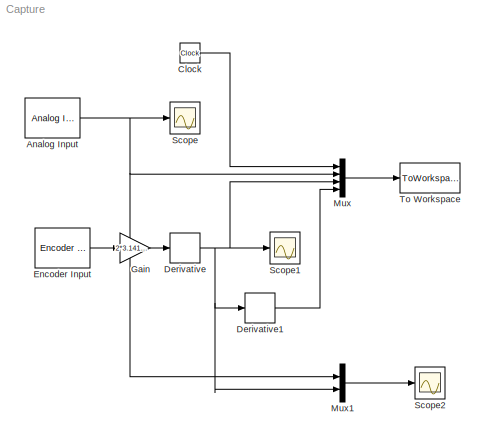
MODEL Capture
KIND model
BLOCK [Reference] Analog Input  REF=rtwinlib/Analog Input
  AttributesFormatString = Sensoray\\nModel 626 [auto]
  Channels = 1
  DataType = 1
  DrvAddress = 4294967295
  DrvName = Sensoray/Model_626
  DrvOptions = zeros(1,0)
  Ports = [0, 1]
  RangeMode = 1
  SampleTime = -1
  SourceBlock = rtwinlib/Analog Input
  SourceType = RTWin Analog Input
  VoltRange = 1
BLOCK [Clock] Clock
  Decimation = 10
BLOCK [Derivative] Derivative
BLOCK [Derivative] Derivative1
BLOCK [Reference] Encoder Input  REF=rtwinlib/Encoder Input
  AttributesFormatString = Sensoray\\nModel 626 [auto]
  Channels = [4]
  DataType = 1
  DrvAddress = 4294967295
  DrvName = Sensoray/Model_626
  DrvOptions = zeros(1,0)
  IndexPulse = 2
  InputFilter = Inf
  Ports = [0, 1]
  QuadMode = 3
  SampleTime = -1
  SourceBlock = rtwinlib/Encoder Input
  SourceType = RTWin Encoder Input
BLOCK [Gain] Gain
  Gain = 2*3.141592/(500*4*4.8)
  OutDataType = sfix(16)
  OutDataTypeMode = Inherit via internal rule
  OutScaling = 2^0
  ParameterDataType = sfix(16)
  ParameterDataTypeMode = Inherit via internal rule
  ParameterScaling = 2^0
  SaturateOnIntegerOverflow = off
BLOCK [Mux] Mux
  DisplayOption = bar
  Ports = [4, 1]
BLOCK [Mux] Mux1
  DisplayOption = bar
  Inputs = 2
  Ports = [2, 1]
BLOCK [Scope] Scope
  DataFormat = StructureWithTime
  Floating = off
  NumInputPorts = 1
  Ports = [1]
  SampleTime = 0
  TimeRange = 10
  YMax = 10
  YMin = -3
BLOCK [Scope] Scope1
  DataFormat = StructureWithTime
  Floating = off
  NumInputPorts = 1
  Ports = [1]
  SampleTime = 0
  SaveName = ScopeData1
  TimeRange = 10
  YMax = 100
  YMin = -11
BLOCK [Scope] Scope2
  DataFormat = StructureWithTime
  Floating = off
  NumInputPorts = 1
  Ports = [1]
  SampleTime = 0
  SaveName = ScopeData2
  TimeRange = 10
  YMax = 100
  YMin = -11
BLOCK [ToWorkspace] To Workspace
  MaxDataPoints = inf
  SampleTime = -1
  SaveFormat = Structure
  VariableName = simout
NET Analog Input:1 -> Mux1:1, Mux:2, Scope:1
LINE Clock:1 -> Mux:1
LINE Derivative1:1 -> Mux:4
NET Derivative:1 -> Derivative1:1, Mux1:2, Mux:3, Scope1:1
LINE Encoder Input:1 -> Gain:1
LINE Gain:1 -> Derivative:1
LINE Mux1:1 -> Scope2:1
LINE Mux:1 -> To Workspace:1
note: NET lines group one-source signal fan-out (src -> all destinations, sorted); 1:1 wires keep LINE
